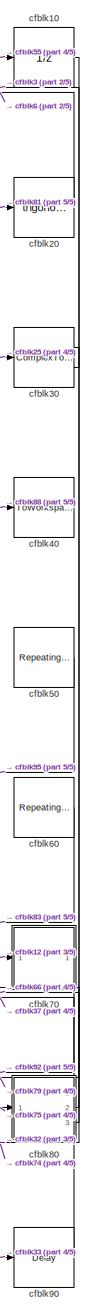
[diagram: root canvas - part 1/5, right side, full height]
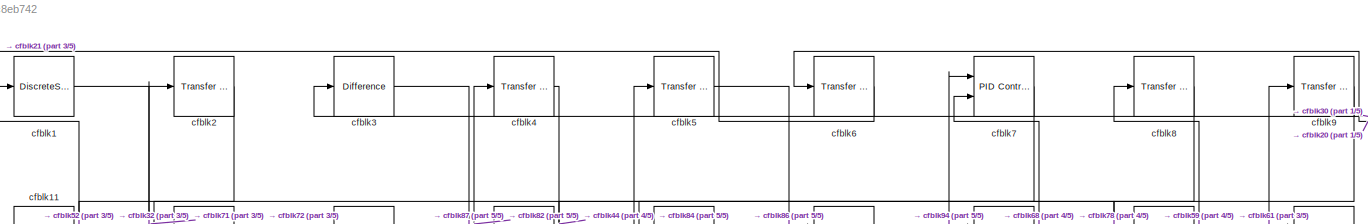
[diagram: root canvas - part 2/5, full width, top band]
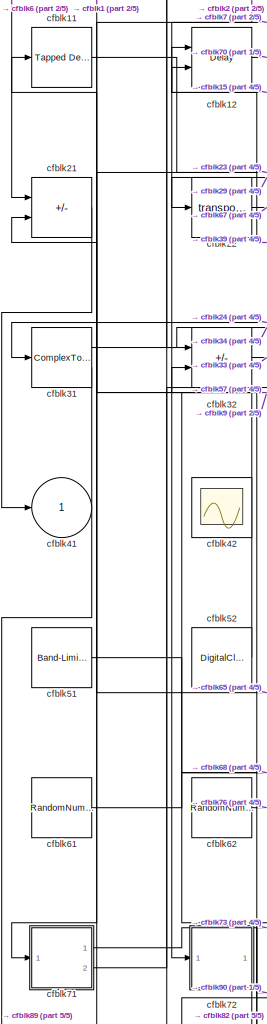
[diagram: root canvas - part 3/5, middle left region]
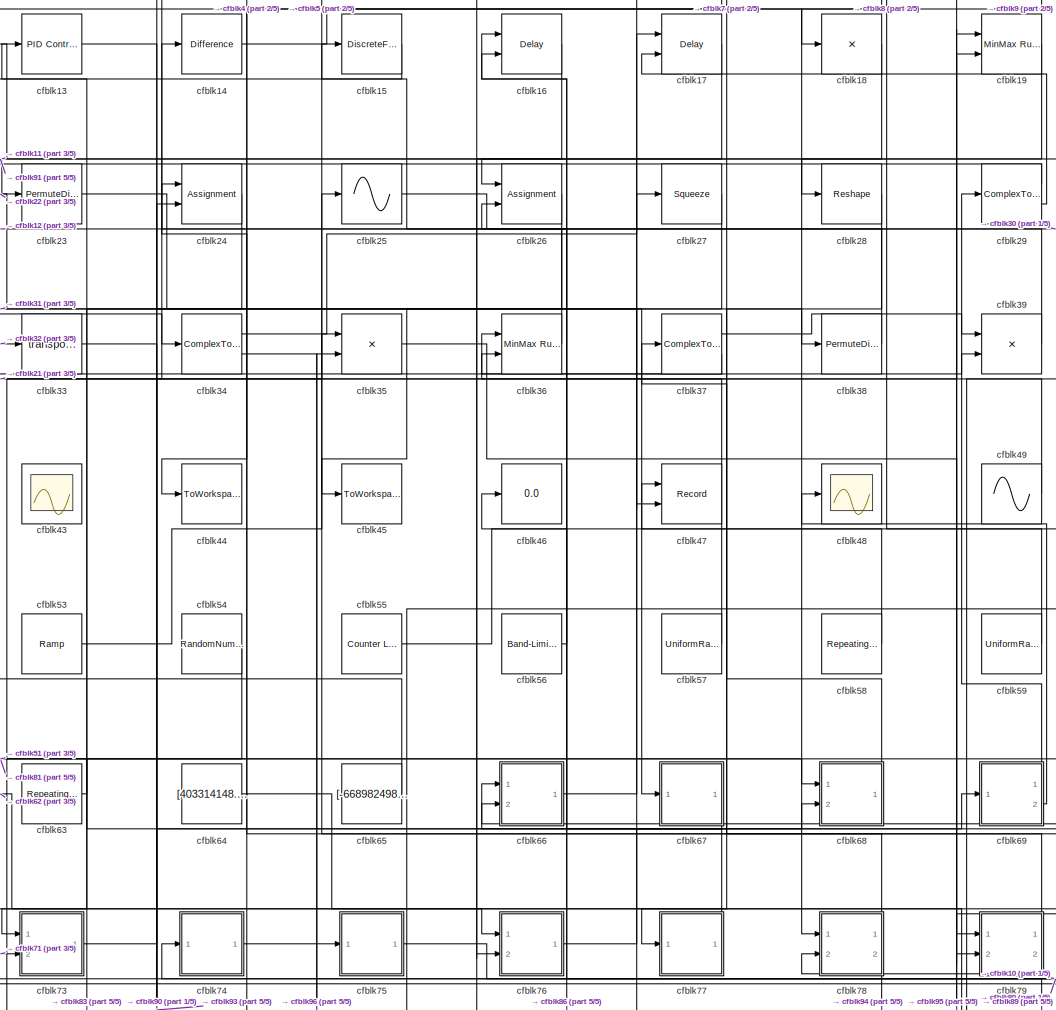
[diagram: root canvas - part 4/5, central region]
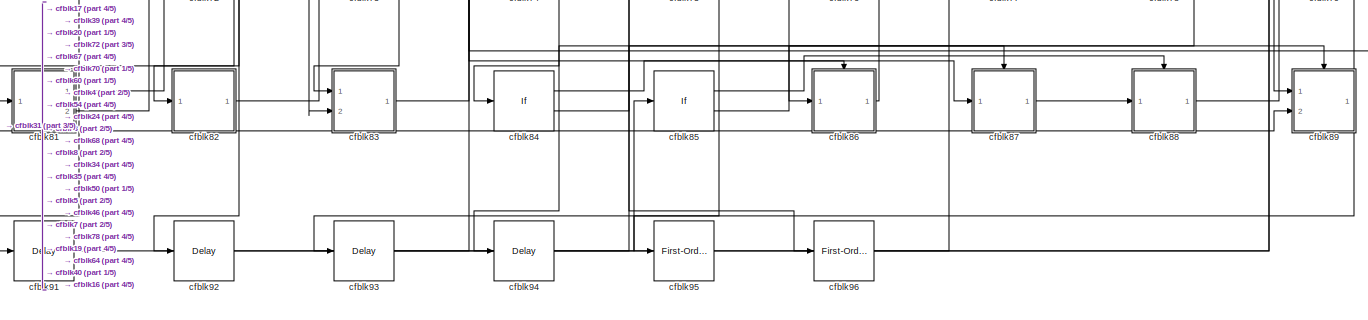
[diagram: root canvas - part 5/5, full width, bottom band]
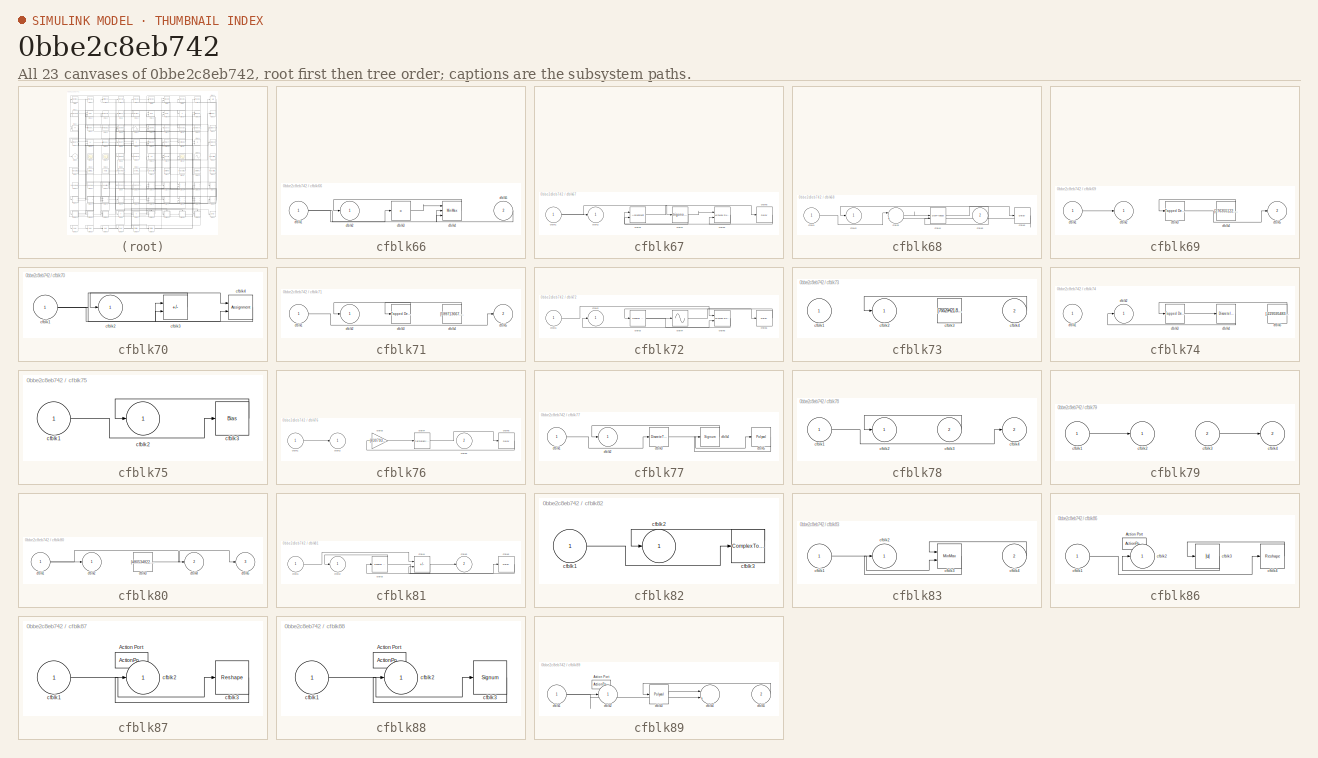
[diagram: thumbnail index - all 23 canvases of the model, root first then tree order]
MODEL slx_0bbe2c8eb742
KIND model
CONFIG AbsTol = auto
CONFIG EnableMultiTasking = off
CONFIG FixedStep = auto
CONFIG MaxStep = auto
CONFIG MinStep = auto
CONFIG RelTol = 1e-3
CONFIG SampleTimeConstraint = Unconstrained
CONFIG SolverName = VariableStepAuto
CONFIG StartTime = 0.0
CONFIG StopTime = 10.0
BLOCK [DiscreteStateSpace] cfblk1
BLOCK [UnitDelay] cfblk10
  HasFrameUpgradeWarning = on
BLOCK [Reference] cfblk11  REF=simulink/Discrete/Tapped Delay
  Ports = [1, 1]
  SourceBlock = simulink/Discrete/Tapped Delay
  SourceProductBaseCode = SL
  SourceType = Tapped Delay Line
BLOCK [Delay] cfblk12
  InputPortMap = u0,e6
  Ports = [2, 1]
  SampleTime = 1
  ShowEnablePort = on
BLOCK [Reference] cfblk13  REF=slpidlib/PID Controller
  Ports = [1, 1]
  SourceBlock = slpidlib/PID Controller
  SourceProductBaseCode = SL
  SourceType = PID 1dof
BLOCK [Reference] cfblk14  REF=simulink/Discrete/Difference
  Ports = [1, 1]
  SourceBlock = simulink/Discrete/Difference
  SourceProductBaseCode = SL
  SourceType = Difference
BLOCK [DiscreteFilter] cfblk15
  InputPortMap = u0
  Ports = [1, 1]
  SampleTime = 1
BLOCK [Delay] cfblk16
  InputPortMap = u0,e6
  Ports = [2, 1]
  SampleTime = 1
  ShowEnablePort = on
BLOCK [Delay] cfblk17
  InputPortMap = u0,e6
  Ports = [2, 1]
  SampleTime = 1
  ShowEnablePort = on
BLOCK [Product] cfblk18
  Inputs = *
  Ports = [1, 1]
BLOCK [Reference] cfblk19  REF=simulink/Math
Operations/MinMax
Running
Resettable
  Ports = [2, 1]
  SourceBlock = simulink/Math\nOperations/MinMax\nRunning\nResettable
  SourceProductBaseCode = SL
  SourceType = MinMax Running Resettable
BLOCK [Reference] cfblk2  REF=simulink/Discrete/Transfer Fcn
First Order
  Ports = [1, 1]
  SourceBlock = simulink/Discrete/Transfer Fcn\nFirst Order
  SourceProductBaseCode = SL
  SourceType = First Order Transfer Fcn
BLOCK [Trigonometry] cfblk20
  Ports = [1, 1]
BLOCK [Sum] cfblk21
  IconShape = rectangular
  Inputs = +-
  Ports = [2, 1]
BLOCK [Math] cfblk22
  Operator = transpose
  Ports = [1, 1]
BLOCK [PermuteDimensions] cfblk23
BLOCK [Assignment] cfblk24
  DiagnosticForDimensions = Warning
  IndexOptions = Index vector (dialog)
  Indices = 1
  OutputSizes = 1
  Ports = [2, 1]
BLOCK [Sin] cfblk25
  Ports = [1, 1]
  SampleTime = 0
  TimeSource = Use external signal
BLOCK [Assignment] cfblk26
  DiagnosticForDimensions = Warning
  IndexOptions = Index vector (dialog)
  Indices = 1
  OutputSizes = 1
  Ports = [2, 1]
BLOCK [Squeeze] cfblk27
BLOCK [Reshape] cfblk28
  Ports = [1, 1]
BLOCK [ComplexToMagnitudeAngle] cfblk29
  Ports = [1, 2]
BLOCK [Reference] cfblk3  REF=simulink/Discrete/Difference
  Ports = [1, 1]
  SourceBlock = simulink/Discrete/Difference
  SourceProductBaseCode = SL
  SourceType = Difference
BLOCK [ComplexToRealImag] cfblk30
  Ports = [1, 2]
BLOCK [ComplexToMagnitudeAngle] cfblk31
  Ports = [1, 2]
BLOCK [Sum] cfblk32
  IconShape = rectangular
  Inputs = +-
  Ports = [2, 1]
BLOCK [Math] cfblk33
  Operator = transpose
  Ports = [1, 1]
BLOCK [ComplexToMagnitudeAngle] cfblk34
  Ports = [1, 2]
BLOCK [Product] cfblk35
  Inputs = **
  Ports = [2, 1]
BLOCK [Reference] cfblk36  REF=simulink/Math
Operations/MinMax
Running
Resettable
  Ports = [2, 1]
  SourceBlock = simulink/Math\nOperations/MinMax\nRunning\nResettable
  SourceProductBaseCode = SL
  SourceType = MinMax Running Resettable
BLOCK [ComplexToRealImag] cfblk37
  Ports = [1, 2]
BLOCK [PermuteDimensions] cfblk38
BLOCK [Product] cfblk39
  Ports = [2, 1]
BLOCK [Reference] cfblk4  REF=simulink/Discrete/Transfer Fcn
Lead or Lag
  Ports = [1, 1]
  SourceBlock = simulink/Discrete/Transfer Fcn\nLead or Lag
  SourceProductBaseCode = SL
  SourceType = Lead or Lag Compensator
BLOCK [ToWorkspace] cfblk40
  FixptAsFi = on
  MaxDataPoints = inf
  Ports = [1]
  SampleTime = -1
  SaveFormat = Timeseries
  VariableName = mipfyfa
BLOCK [Outport] cfblk41
BLOCK [Scope] cfblk42
  Floating = on
  NumInputPorts = 1
  Ports = []
BLOCK [Scope] cfblk43
  Floating = on
  NumInputPorts = 1
  Ports = []
BLOCK [ToWorkspace] cfblk44
  FixptAsFi = on
  MaxDataPoints = inf
  Ports = [1]
  SampleTime = -1
  SaveFormat = Timeseries
  VariableName = nhxszrr
BLOCK [ToWorkspace] cfblk45
  FixptAsFi = on
  MaxDataPoints = inf
  Ports = [1]
  SampleTime = -1
  SaveFormat = Timeseries
  VariableName = esfohva
BLOCK [Display] cfblk46
  Decimation = 1
  Ports = [1]
BLOCK [Record] cfblk47
  CompatibilityTag = XY
  FileSettingsInternal = {"entries":[{"content":{"excelSettings":{"content":{},"type":"Streamout.ExcelSettings"}},"type":"Streamout.FileSettingStorage","uuid":"d13ae737-717a-44e4-beef-aca473ab83c8"}],"packageUris":["http://schema.mathworks.com/mf0/streamout_blocks/R2020a"],"version":"1.0"}
  Layout = [1 1]
  Ports = [2]
  SignalsInternal = {"entries":[{"content":{"signals":[{"content":{"blockPath":["sampleModel182/cfblk47"],"channel":[],"dimensions":[1],"domain":"sampleModel182/cfblk47","lineColor":"#a2142f","plots":[1],"port":1,"sid":[""],"signalID":6832,"signalName":"cfblk58"},"type":"RecordBlkView.Signal","uuid":"52de0a0e-42b8-4ab6-a928-dbb1bce8dd43"},{"content":{"blockPath":["sampleModel182/cfblk47"],"channel":[],"dimensions":[1...<+385ch>
  VisualizationBindings = {"xyplotplugin":{"info":[{"series":[{"bindingParametersList":[{"parameter":"X-Axis","signalID":6832,"signalName":"cfblk58"},{"parameter":"Y-Axis","signalID":6836,"signalName":"cfblk23"}],"seriesID":60133}],"subplotID":1}]}}
BLOCK [Scope] cfblk48
  Floating = off
  NumInputPorts = 1
  Ports = [1]
BLOCK [Sin] cfblk49
  Amplitude = [-141875672.299204]
  Bias = [779859813.343924]
  Ports = [0, 1]
  SampleTime = 0
BLOCK [Reference] cfblk5  REF=simulink/Discrete/Transfer Fcn
First Order
  Ports = [1, 1]
  SourceBlock = simulink/Discrete/Transfer Fcn\nFirst Order
  SourceProductBaseCode = SL
  SourceType = First Order Transfer Fcn
BLOCK [Reference] cfblk50  REF=simulink/Sources/Repeating
Sequence
Stair
  Ports = [0, 1]
  SourceBlock = simulink/Sources/Repeating\nSequence\nStair
  SourceProductBaseCode = SL
  SourceType = Repeating Sequence Stair
BLOCK [Reference] cfblk51  REF=simulink/Sources/Band-Limited
White Noise
  Ports = [0, 1]
  SourceBlock = simulink/Sources/Band-Limited\nWhite Noise
  SourceProductBaseCode = SL
  SourceType = Band-Limited White Noise.
BLOCK [DigitalClock] cfblk52
BLOCK [Reference] cfblk53  REF=simulink/Sources/Ramp
  Ports = [0, 1]
  SourceBlock = simulink/Sources/Ramp
  SourceProductBaseCode = SL
  SourceType = Ramp
BLOCK [RandomNumber] cfblk54
  Mean = [-75945.215518]
  SampleTime = 0.1
  Seed = [128117105.000000]
  Variance = [96366.823792]
BLOCK [Reference] cfblk55  REF=simulink/Sources/Counter
Limited
  Ports = [0, 1]
  SourceBlock = simulink/Sources/Counter\nLimited
  SourceProductBaseCode = SL
  SourceType = Counter Limited
BLOCK [Reference] cfblk56  REF=simulink/Sources/Band-Limited
White Noise
  Ports = [0, 1]
  SourceBlock = simulink/Sources/Band-Limited\nWhite Noise
  SourceProductBaseCode = SL
  SourceType = Band-Limited White Noise.
BLOCK [UniformRandomNumber] cfblk57
  Maximum = [6030967556.197421]
  Minimum = [-2157205412.986696]
  SampleTime = 0.1
  Seed = [60259926.000000]
BLOCK [Reference] cfblk58  REF=simulink/Sources/Repeating
Sequence
Stair
  Ports = [0, 1]
  SourceBlock = simulink/Sources/Repeating\nSequence\nStair
  SourceProductBaseCode = SL
  SourceType = Repeating Sequence Stair
BLOCK [UniformRandomNumber] cfblk59
  Maximum = [7630143098.593646]
  Minimum = [-1472469171.616397]
  SampleTime = 0.1
  Seed = [576780.000000]
BLOCK [Reference] cfblk6  REF=simulink/Discrete/Transfer Fcn
Lead or Lag
  Ports = [1, 1]
  SourceBlock = simulink/Discrete/Transfer Fcn\nLead or Lag
  SourceProductBaseCode = SL
  SourceType = Lead or Lag Compensator
BLOCK [Reference] cfblk60  REF=simulink/Sources/Repeating
Sequence
Stair
  Ports = [0, 1]
  SourceBlock = simulink/Sources/Repeating\nSequence\nStair
  SourceProductBaseCode = SL
  SourceType = Repeating Sequence Stair
BLOCK [RandomNumber] cfblk61
  Mean = [-83719.309304]
  SampleTime = 0.1
  Seed = [698296596.000000]
  Variance = [73957.021569]
BLOCK [RandomNumber] cfblk62
  Mean = [-58692.559989]
  SampleTime = 0.1
  Seed = [413759557.000000]
  Variance = [72148.805861]
BLOCK [Reference] cfblk63  REF=simulink/Sources/Repeating
Sequence
Interpolated
  Ports = [0, 1]
  SourceBlock = simulink/Sources/Repeating\nSequence\nInterpolated
  SourceProductBaseCode = SL
  SourceType = Repeating Sequence Interpolated
BLOCK [Constant] cfblk64
  SampleTime = 1
  Value = [403314148.191753]
BLOCK [Constant] cfblk65
  SampleTime = 1
  Value = [-668982498.772668]
BLOCK [SubSystem] cfblk66
  Ports = [2, 1]
  RequestExecContextInheritance = off
BLOCK [Inport] cfblk66/cfblk1
BLOCK [Outport] cfblk66/cfblk2
BLOCK [Product] cfblk66/cfblk3
  Inputs = *
  Ports = [1, 1]
BLOCK [MinMax] cfblk66/cfblk4
  Inputs = 3
  Ports = [3, 1]
BLOCK [Inport] cfblk66/cfblk5
  Port = 2
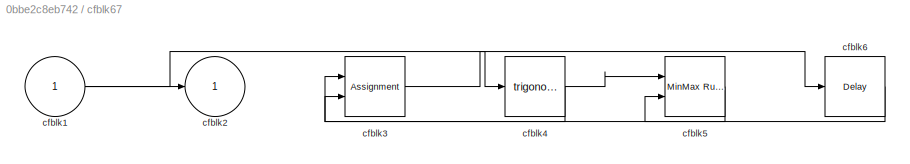
BLOCK [SubSystem] cfblk67
  Ports = [1, 1]
  RequestExecContextInheritance = off
BLOCK [Inport] cfblk67/cfblk1
BLOCK [Outport] cfblk67/cfblk2
BLOCK [Assignment] cfblk67/cfblk3
  DiagnosticForDimensions = Warning
  IndexOptions = Index vector (dialog)
  Indices = 1
  OutputSizes = 1
  Ports = [2, 1]
BLOCK [Trigonometry] cfblk67/cfblk4
  Ports = [1, 1]
BLOCK [Reference] cfblk67/cfblk5  REF=simulink/Math
Operations/MinMax
Running
Resettable
  Ports = [2, 1]
  SourceBlock = simulink/Math\nOperations/MinMax\nRunning\nResettable
  SourceProductBaseCode = SL
  SourceType = MinMax Running Resettable
BLOCK [Delay] cfblk67/cfblk6
  InputPortMap = u0
  Ports = [1, 1]
  SampleTime = 1
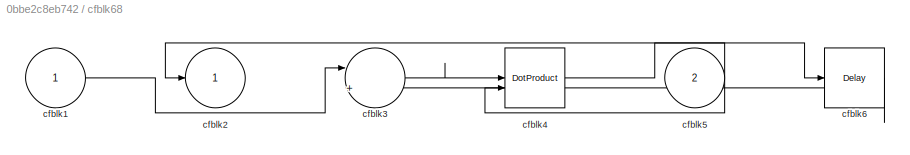
BLOCK [SubSystem] cfblk68
  Ports = [2, 1]
  RequestExecContextInheritance = off
BLOCK [Inport] cfblk68/cfblk1
BLOCK [Outport] cfblk68/cfblk2
BLOCK [Sum] cfblk68/cfblk3
  Inputs = |++
  Ports = [2, 1]
BLOCK [DotProduct] cfblk68/cfblk4
  OutDataTypeStr = Inherit: Inherit via internal rule
BLOCK [Inport] cfblk68/cfblk5
  Port = 2
BLOCK [Delay] cfblk68/cfblk6
  InputPortMap = u0
  Ports = [1, 1]
  SampleTime = 1
BLOCK [SubSystem] cfblk69
  Ports = [1, 2]
  RequestExecContextInheritance = off
BLOCK [Inport] cfblk69/cfblk1
BLOCK [Outport] cfblk69/cfblk2
BLOCK [Reference] cfblk69/cfblk3  REF=simulink/Discrete/Tapped Delay
  Ports = [1, 1]
  SourceBlock = simulink/Discrete/Tapped Delay
  SourceProductBaseCode = SL
  SourceType = Tapped Delay Line
BLOCK [Constant] cfblk69/cfblk4
  SampleTime = 1
  Value = [276355122.722142]
BLOCK [Outport] cfblk69/cfblk5
  Port = 2
BLOCK [Reference] cfblk7  REF=slpidlib/PID Controller (2DOF)
  Ports = [2, 1]
  SourceBlock = slpidlib/PID Controller (2DOF)
  SourceProductBaseCode = SL
  SourceType = PID 2dof
BLOCK [SubSystem] cfblk70
  Ports = [1, 1]
  RequestExecContextInheritance = off
BLOCK [Inport] cfblk70/cfblk1
BLOCK [Outport] cfblk70/cfblk2
BLOCK [Sum] cfblk70/cfblk3
  IconShape = rectangular
  Inputs = +-
  Ports = [2, 1]
BLOCK [Assignment] cfblk70/cfblk4
  DiagnosticForDimensions = Warning
  IndexOptions = Index vector (dialog)
  Indices = 1
  OutputSizes = 1
  Ports = [2, 1]
BLOCK [SubSystem] cfblk71
  Ports = [1, 2]
  RequestExecContextInheritance = off
BLOCK [Inport] cfblk71/cfblk1
BLOCK [Outport] cfblk71/cfblk2
BLOCK [Reference] cfblk71/cfblk3  REF=simulink/Discrete/Tapped Delay
  Ports = [1, 1]
  SourceBlock = simulink/Discrete/Tapped Delay
  SourceProductBaseCode = SL
  SourceType = Tapped Delay Line
BLOCK [Constant] cfblk71/cfblk4
  SampleTime = 1
  Value = [599713667.016238]
BLOCK [Outport] cfblk71/cfblk5
  Port = 2
BLOCK [SubSystem] cfblk72
  Ports = [1, 1]
  RequestExecContextInheritance = off
BLOCK [Inport] cfblk72/cfblk1
BLOCK [Outport] cfblk72/cfblk2
BLOCK [Reference] cfblk72/cfblk3  REF=simulink/Discrete/Transfer Fcn
Lead or Lag
  Ports = [1, 1]
  SourceBlock = simulink/Discrete/Transfer Fcn\nLead or Lag
  SourceProductBaseCode = SL
  SourceType = Lead or Lag Compensator
BLOCK [Sin] cfblk72/cfblk4
  Ports = [1, 1]
  SampleTime = 0
  TimeSource = Use external signal
BLOCK [Reference] cfblk72/cfblk5  REF=simulink/Math
Operations/MinMax
Running
Resettable
  Ports = [2, 1]
  SourceBlock = simulink/Math\nOperations/MinMax\nRunning\nResettable
  SourceProductBaseCode = SL
  SourceType = MinMax Running Resettable
BLOCK [Delay] cfblk72/cfblk6
  InputPortMap = u0
  Ports = [1, 1]
  SampleTime = 1
BLOCK [SubSystem] cfblk73
  Ports = [2, 1]
  RequestExecContextInheritance = off
BLOCK [Inport] cfblk73/cfblk1
BLOCK [Outport] cfblk73/cfblk2
BLOCK [Constant] cfblk73/cfblk3
  SampleTime = 1
  Value = [76629421.829974]
BLOCK [Inport] cfblk73/cfblk4
  Port = 2
BLOCK [SubSystem] cfblk74
  Ports = [1, 1]
  RequestExecContextInheritance = off
BLOCK [Inport] cfblk74/cfblk1
BLOCK [Outport] cfblk74/cfblk2
BLOCK [Reference] cfblk74/cfblk3  REF=simulink/Discrete/Tapped Delay
  Ports = [1, 1]
  SourceBlock = simulink/Discrete/Tapped Delay
  SourceProductBaseCode = SL
  SourceType = Tapped Delay Line
BLOCK [DiscreteIntegrator] cfblk74/cfblk4
  ICPrevOutput = DiscIntNeverNeededParam
  ICPrevScaledInput = DiscIntNeverNeededParam
  InitialConditionSetting = Auto
  Ports = [1, 1]
BLOCK [Constant] cfblk74/cfblk5
  SampleTime = 1
  Value = [-229595483.232373]
BLOCK [SubSystem] cfblk75
  Ports = [1, 1]
  RequestExecContextInheritance = off
BLOCK [Inport] cfblk75/cfblk1
BLOCK [Outport] cfblk75/cfblk2
BLOCK [Bias] cfblk75/cfblk3
  Bias = [-987009397.239793]
  SaturateOnIntegerOverflow = off
BLOCK [SubSystem] cfblk76
  Ports = [2, 1]
  RequestExecContextInheritance = off
BLOCK [Inport] cfblk76/cfblk1
BLOCK [Outport] cfblk76/cfblk2
BLOCK [Gain] cfblk76/cfblk3
  Gain = [830793521.477097]
BLOCK [PermuteDimensions] cfblk76/cfblk4
BLOCK [Inport] cfblk76/cfblk5
  Port = 2
BLOCK [Delay] cfblk76/cfblk6
  InputPortMap = u0
  Ports = [1, 1]
  SampleTime = 1
BLOCK [SubSystem] cfblk77
  Ports = [1, 1]
  RequestExecContextInheritance = off
BLOCK [Inport] cfblk77/cfblk1
BLOCK [Outport] cfblk77/cfblk2
BLOCK [DiscreteTransferFcn] cfblk77/cfblk3
  InputPortMap = u0
  Ports = [1, 1]
  SampleTime = 1
BLOCK [Signum] cfblk77/cfblk4
BLOCK [Polyval] cfblk77/cfblk5
  Coefs = [ +2.081618890e-019, -1.441693666e-014, +4.719686976e-010, -8.536869453e-006, +1.621573104e-001, -8.087801117e+001 ]
BLOCK [SubSystem] cfblk78
  Ports = [2, 2]
  RequestExecContextInheritance = off
BLOCK [Inport] cfblk78/cfblk1
BLOCK [Outport] cfblk78/cfblk2
BLOCK [Inport] cfblk78/cfblk3
  Port = 2
BLOCK [Outport] cfblk78/cfblk4
  Port = 2
BLOCK [SubSystem] cfblk79
  Ports = [2, 2]
  RequestExecContextInheritance = off
BLOCK [Inport] cfblk79/cfblk1
BLOCK [Outport] cfblk79/cfblk2
BLOCK [Inport] cfblk79/cfblk3
  Port = 2
BLOCK [Outport] cfblk79/cfblk4
  Port = 2
BLOCK [Reference] cfblk8  REF=simulink/Discrete/Transfer Fcn
First Order
  Ports = [1, 1]
  SourceBlock = simulink/Discrete/Transfer Fcn\nFirst Order
  SourceProductBaseCode = SL
  SourceType = First Order Transfer Fcn
BLOCK [SubSystem] cfblk80
  Ports = [1, 3]
  RequestExecContextInheritance = off
BLOCK [Inport] cfblk80/cfblk1
BLOCK [Outport] cfblk80/cfblk2
BLOCK [Constant] cfblk80/cfblk3
  SampleTime = 1
  Value = [480534822.237800]
BLOCK [Outport] cfblk80/cfblk4
  Port = 2
BLOCK [Outport] cfblk80/cfblk5
  Port = 3
BLOCK [SubSystem] cfblk81
  Ports = [1, 2]
  RequestExecContextInheritance = off
BLOCK [Inport] cfblk81/cfblk1
BLOCK [Outport] cfblk81/cfblk2
BLOCK [Reference] cfblk81/cfblk3  REF=simulink/Discrete/Transfer Fcn
Real Zero
  Ports = [1, 1]
  SourceBlock = simulink/Discrete/Transfer Fcn\nReal Zero
  SourceProductBaseCode = SL
  SourceType = Transfer Fcn Real Zero
BLOCK [Sum] cfblk81/cfblk4
  IconShape = rectangular
  Inputs = +-
  Ports = [2, 1]
BLOCK [Outport] cfblk81/cfblk5
  Port = 2
BLOCK [Delay] cfblk81/cfblk6
  InputPortMap = u0
  Ports = [1, 1]
  SampleTime = 1
BLOCK [SubSystem] cfblk82
  Ports = [1, 1]
  RequestExecContextInheritance = off
BLOCK [Inport] cfblk82/cfblk1
BLOCK [Outport] cfblk82/cfblk2
BLOCK [ComplexToRealImag] cfblk82/cfblk3
  Ports = [1, 2]
BLOCK [SubSystem] cfblk83
  Ports = [2, 1]
  RequestExecContextInheritance = off
BLOCK [Inport] cfblk83/cfblk1
BLOCK [Outport] cfblk83/cfblk2
BLOCK [MinMax] cfblk83/cfblk3
  Function = max
  Inputs = 2
  Ports = [2, 1]
BLOCK [Inport] cfblk83/cfblk4
  Port = 2
BLOCK [If] cfblk84
  IfExpression = u1 >= 0
  Ports = [1, 2]
  SampleTime = 1
BLOCK [If] cfblk85
  IfExpression = u1 >= 0
  Ports = [1, 2]
  SampleTime = 1
BLOCK [SubSystem] cfblk86
  Ports = [1, 1, 0, 0, 0, 0, 0, 1]
  RequestExecContextInheritance = off
  TreatAsAtomicUnit = on
BLOCK [ActionPort] cfblk86/Action Port
  ActionPortLabel = if(u1 >= 0)
BLOCK [Inport] cfblk86/cfblk1
BLOCK [Outport] cfblk86/cfblk2
BLOCK [Abs] cfblk86/cfblk3
  SaturateOnIntegerOverflow = off
BLOCK [Reshape] cfblk86/cfblk4
  Ports = [1, 1]
BLOCK [SubSystem] cfblk87
  Ports = [1, 1, 0, 0, 0, 0, 0, 1]
  RequestExecContextInheritance = off
  TreatAsAtomicUnit = on
BLOCK [ActionPort] cfblk87/Action Port
  ActionPortLabel = else
BLOCK [Inport] cfblk87/cfblk1
BLOCK [Outport] cfblk87/cfblk2
BLOCK [Reshape] cfblk87/cfblk3
  Ports = [1, 1]
BLOCK [SubSystem] cfblk88
  Ports = [1, 1, 0, 0, 0, 0, 0, 1]
  RequestExecContextInheritance = off
  TreatAsAtomicUnit = on
BLOCK [ActionPort] cfblk88/Action Port
  ActionPortLabel = if(u1 >= 0)
BLOCK [Inport] cfblk88/cfblk1
BLOCK [Outport] cfblk88/cfblk2
BLOCK [Signum] cfblk88/cfblk3
BLOCK [SubSystem] cfblk89
  Ports = [2, 1, 0, 0, 0, 0, 0, 1]
  RequestExecContextInheritance = off
  TreatAsAtomicUnit = on
BLOCK [ActionPort] cfblk89/Action Port
  ActionPortLabel = else
BLOCK [Inport] cfblk89/cfblk1
BLOCK [Outport] cfblk89/cfblk2
BLOCK [Polyval] cfblk89/cfblk3
  Coefs = [ +2.081618890e-019, -1.441693666e-014, +4.719686976e-010, -8.536869453e-006, +1.621573104e-001, -8.087801117e+001 ]
BLOCK [Sum] cfblk89/cfblk4
  Inputs = |++
  Ports = [2, 1]
BLOCK [Inport] cfblk89/cfblk5
  Port = 2
BLOCK [Reference] cfblk9  REF=simulink/Discrete/Transfer Fcn
First Order
  Ports = [1, 1]
  SourceBlock = simulink/Discrete/Transfer Fcn\nFirst Order
  SourceProductBaseCode = SL
  SourceType = First Order Transfer Fcn
BLOCK [Delay] cfblk90
  InputPortMap = u0
  Ports = [1, 1]
  SampleTime = 1
BLOCK [Delay] cfblk91
  InputPortMap = u0
  Ports = [1, 1]
  SampleTime = 1
BLOCK [Delay] cfblk92
  InputPortMap = u0
  Ports = [1, 1]
  SampleTime = 1
BLOCK [Delay] cfblk93
  InputPortMap = u0
  Ports = [1, 1]
  SampleTime = 1
BLOCK [Delay] cfblk94
  InputPortMap = u0
  Ports = [1, 1]
  SampleTime = 1
BLOCK [Reference] cfblk95  REF=simulink_need_slupdate/First-Order
Hold
  DisableCoverage = on
  Ports = [1, 1]
  SourceBlock = simulink_need_slupdate/First-Order\nHold
  SourceProductBaseCode = SL
  SourceType = First-Order Hold
BLOCK [Reference] cfblk96  REF=simulink_need_slupdate/First-Order
Hold
  DisableCoverage = on
  Ports = [1, 1]
  SourceBlock = simulink_need_slupdate/First-Order\nHold
  SourceProductBaseCode = SL
  SourceType = First-Order Hold
LINE cfblk10:1 -> cfblk74:1
LINE cfblk11:1 -> cfblk23:1
LINE cfblk12:1 -> cfblk70:1
LINE cfblk13:1 -> cfblk38:1
LINE cfblk14:1 -> cfblk18:1
LINE cfblk15:1 -> cfblk12:2
LINE cfblk16:1 -> cfblk76:2
LINE cfblk17:1 -> cfblk91:1
LINE cfblk18:1 -> cfblk28:1
LINE cfblk19:1 -> cfblk26:1
LINE cfblk1:1 -> cfblk32:1
LINE cfblk20:1 -> cfblk6:1
LINE cfblk21:1 -> cfblk41:1
LINE cfblk22:1 -> cfblk67:1
LINE cfblk23:1 -> cfblk47:2
LINE cfblk24:1 -> cfblk31:1
LINE cfblk25:1 -> cfblk30:1
LINE cfblk26:1 -> cfblk45:1
LINE cfblk27:1 -> cfblk73:1
LINE cfblk28:1 -> cfblk77:1
LINE cfblk29:1 -> cfblk22:1
LINE cfblk29:2 -> cfblk17:2
LINE cfblk2:1 -> cfblk72:1
LINE cfblk30:1 -> cfblk79:2
LINE cfblk30:2 -> cfblk3:1
LINE cfblk31:1 -> cfblk34:1
LINE cfblk31:2 -> cfblk89:2
LINE cfblk32:1 -> cfblk33:1
LINE cfblk33:1 -> cfblk90:1
LINE cfblk34:1 -> cfblk17:1
LINE cfblk34:2 -> cfblk96:1
LINE cfblk35:1 -> cfblk79:1
LINE cfblk36:1 -> cfblk15:1
LINE cfblk37:1 -> cfblk39:1
LINE cfblk37:2 -> cfblk36:2
LINE cfblk38:1 -> cfblk14:1
LINE cfblk39:1 -> cfblk12:1
LINE cfblk3:1 -> cfblk87:1
LINE cfblk49:1 -> cfblk16:1
LINE cfblk4:1 -> cfblk44:1
LINE cfblk50:1 -> cfblk95:1
LINE cfblk51:1 -> cfblk68:1
LINE cfblk52:1 -> cfblk1:1
LINE cfblk53:1 -> cfblk25:1
LINE cfblk54:1 -> cfblk83:1
LINE cfblk55:1 -> cfblk10:1
LINE cfblk56:1 -> cfblk26:2
LINE cfblk57:1 -> cfblk21:2
LINE cfblk58:1 -> cfblk47:1
LINE cfblk59:1 -> cfblk8:1
LINE cfblk5:1 -> cfblk86:1
LINE cfblk60:1 -> cfblk83:2
LINE cfblk61:1 -> cfblk9:1
LINE cfblk62:1 -> cfblk76:1
LINE cfblk63:1 -> cfblk13:1
LINE cfblk64:1 -> cfblk89:1
LINE cfblk65:1 -> cfblk11:1
NET cfblk66/cfblk1:1 -> cfblk66/cfblk3:1, cfblk66/cfblk4:3
LINE cfblk66/cfblk3:1 -> cfblk66/cfblk4:1
LINE cfblk66/cfblk4:1 -> cfblk66/cfblk2:1
LINE cfblk66/cfblk5:1 -> cfblk66/cfblk4:2
LINE cfblk66:1 -> cfblk27:1
NET cfblk67/cfblk1:1 -> cfblk67/cfblk2:1, cfblk67/cfblk4:1
LINE cfblk67/cfblk3:1 -> cfblk67/cfblk6:1
NET cfblk67/cfblk4:1 -> cfblk67/cfblk3:2, cfblk67/cfblk5:1
LINE cfblk67/cfblk5:1 -> cfblk67/cfblk3:1
LINE cfblk67/cfblk6:1 -> cfblk67/cfblk5:2
LINE cfblk67:1 -> cfblk81:1
LINE cfblk68/cfblk1:1 -> cfblk68/cfblk3:1
LINE cfblk68/cfblk3:1 -> cfblk68/cfblk4:1
LINE cfblk68/cfblk4:1 -> cfblk68/cfblk6:1
NET cfblk68/cfblk5:1 -> cfblk68/cfblk2:1, cfblk68/cfblk4:2
LINE cfblk68/cfblk6:1 -> cfblk68/cfblk3:2
LINE cfblk68:1 -> cfblk7:2
LINE cfblk69/cfblk1:1 -> cfblk69/cfblk2:1
LINE cfblk69/cfblk3:1 -> cfblk69/cfblk5:1
LINE cfblk69/cfblk4:1 -> cfblk69/cfblk3:1
LINE cfblk69:1 -> cfblk29:1
LINE cfblk69:2 -> cfblk48:1
LINE cfblk6:1 -> cfblk21:1
NET cfblk70/cfblk1:1 -> cfblk70/cfblk3:1, cfblk70/cfblk4:1, cfblk70/cfblk4:2
LINE cfblk70/cfblk3:1 -> cfblk70/cfblk2:1
LINE cfblk70/cfblk4:1 -> cfblk70/cfblk3:2
LINE cfblk70:1 -> cfblk92:1
LINE cfblk71/cfblk1:1 -> cfblk71/cfblk5:1
LINE cfblk71/cfblk3:1 -> cfblk71/cfblk2:1
LINE cfblk71/cfblk4:1 -> cfblk71/cfblk3:1
LINE cfblk71:1 -> cfblk73:2
LINE cfblk71:2 -> cfblk2:1
LINE cfblk72/cfblk1:1 -> cfblk72/cfblk5:1
NET cfblk72/cfblk3:1 -> cfblk72/cfblk4:1, cfblk72/cfblk5:2
LINE cfblk72/cfblk4:1 -> cfblk72/cfblk6:1
LINE cfblk72/cfblk5:1 -> cfblk72/cfblk2:1
LINE cfblk72/cfblk6:1 -> cfblk72/cfblk3:1
LINE cfblk72:1 -> cfblk82:1
LINE cfblk73/cfblk4:1 -> cfblk73/cfblk2:1
LINE cfblk73:1 -> cfblk35:1
LINE cfblk74/cfblk3:1 -> cfblk74/cfblk4:1
LINE cfblk74/cfblk4:1 -> cfblk74/cfblk2:1
LINE cfblk74/cfblk5:1 -> cfblk74/cfblk3:1
LINE cfblk74:1 -> cfblk75:1
LINE cfblk75/cfblk1:1 -> cfblk75/cfblk3:1
LINE cfblk75/cfblk3:1 -> cfblk75/cfblk2:1
LINE cfblk75:1 -> cfblk80:1
LINE cfblk76/cfblk1:1 -> cfblk76/cfblk2:1
LINE cfblk76/cfblk3:1 -> cfblk76/cfblk4:1
LINE cfblk76/cfblk4:1 -> cfblk76/cfblk6:1
LINE cfblk76/cfblk6:1 -> cfblk76/cfblk3:1
LINE cfblk76:1 -> cfblk69:1
LINE cfblk77/cfblk1:1 -> cfblk77/cfblk3:1
LINE cfblk77/cfblk3:1 -> cfblk77/cfblk5:1
LINE cfblk77/cfblk4:1 -> cfblk77/cfblk2:1
LINE cfblk77/cfblk5:1 -> cfblk77/cfblk4:1
LINE cfblk77:1 -> cfblk36:1
LINE cfblk78/cfblk1:1 -> cfblk78/cfblk4:1
LINE cfblk78/cfblk3:1 -> cfblk78/cfblk2:1
LINE cfblk78:1 -> cfblk5:1
LINE cfblk78:2 -> cfblk94:1
LINE cfblk79/cfblk1:1 -> cfblk79/cfblk2:1
LINE cfblk79/cfblk3:1 -> cfblk79/cfblk4:1
LINE cfblk79:1 -> cfblk24:1
LINE cfblk79:2 -> cfblk78:2
LINE cfblk7:1 -> cfblk71:1
NET cfblk80/cfblk1:1 -> cfblk80/cfblk2:1, cfblk80/cfblk4:1
LINE cfblk80/cfblk3:1 -> cfblk80/cfblk5:1
LINE cfblk80:1 -> cfblk37:1
LINE cfblk80:2 -> cfblk66:1
LINE cfblk80:3 -> cfblk66:2
LINE cfblk81/cfblk1:1 -> cfblk81/cfblk4:1
NET cfblk81/cfblk3:1 -> cfblk81/cfblk2:1, cfblk81/cfblk6:1
NET cfblk81/cfblk4:1 -> cfblk81/cfblk3:1, cfblk81/cfblk5:1
LINE cfblk81/cfblk6:1 -> cfblk81/cfblk4:2
LINE cfblk81:1 -> cfblk20:1
LINE cfblk81:2 -> cfblk39:2
LINE cfblk82/cfblk1:1 -> cfblk82/cfblk3:1
LINE cfblk82/cfblk3:1 -> cfblk82/cfblk2:1
LINE cfblk82:1 -> cfblk4:1
LINE cfblk83/cfblk1:1 -> cfblk83/cfblk3:2
LINE cfblk83/cfblk3:1 -> cfblk83/cfblk2:1
LINE cfblk83/cfblk4:1 -> cfblk83/cfblk3:1
LINE cfblk83:1 -> cfblk68:2
LINE cfblk84:1 -> cfblk86:ifaction
LINE cfblk84:2 -> cfblk87:ifaction
LINE cfblk85:1 -> cfblk88:ifaction
LINE cfblk85:2 -> cfblk89:ifaction
LINE cfblk86/cfblk1:1 -> cfblk86/cfblk4:1
LINE cfblk86/cfblk3:1 -> cfblk86/cfblk2:1
LINE cfblk86/cfblk4:1 -> cfblk86/cfblk3:1
LINE cfblk86:1 -> cfblk46:1
LINE cfblk87/cfblk1:1 -> cfblk87/cfblk3:1
LINE cfblk87/cfblk3:1 -> cfblk87/cfblk2:1
LINE cfblk87:1 -> cfblk88:1
LINE cfblk88/cfblk1:1 -> cfblk88/cfblk3:1
LINE cfblk88/cfblk3:1 -> cfblk88/cfblk2:1
LINE cfblk88:1 -> cfblk40:1
NET cfblk89/cfblk1:1 -> cfblk89/cfblk2:1, cfblk89/cfblk4:2
LINE cfblk89/cfblk3:1 -> cfblk89/cfblk4:1
LINE cfblk89/cfblk5:1 -> cfblk89/cfblk3:1
NET cfblk89:1 -> cfblk16:2, cfblk93:1
LINE cfblk8:1 -> cfblk84:1
LINE cfblk90:1 -> cfblk32:2
LINE cfblk91:1 -> cfblk35:2
LINE cfblk92:1 -> cfblk85:1
LINE cfblk93:1 -> cfblk24:2
LINE cfblk94:1 -> cfblk7:1
LINE cfblk95:1 -> cfblk19:1
LINE cfblk96:1 -> cfblk19:2
LINE cfblk9:1 -> cfblk78:1
note: NET lines group one-source signal fan-out (src -> all destinations, sorted); 1:1 wires keep LINE
